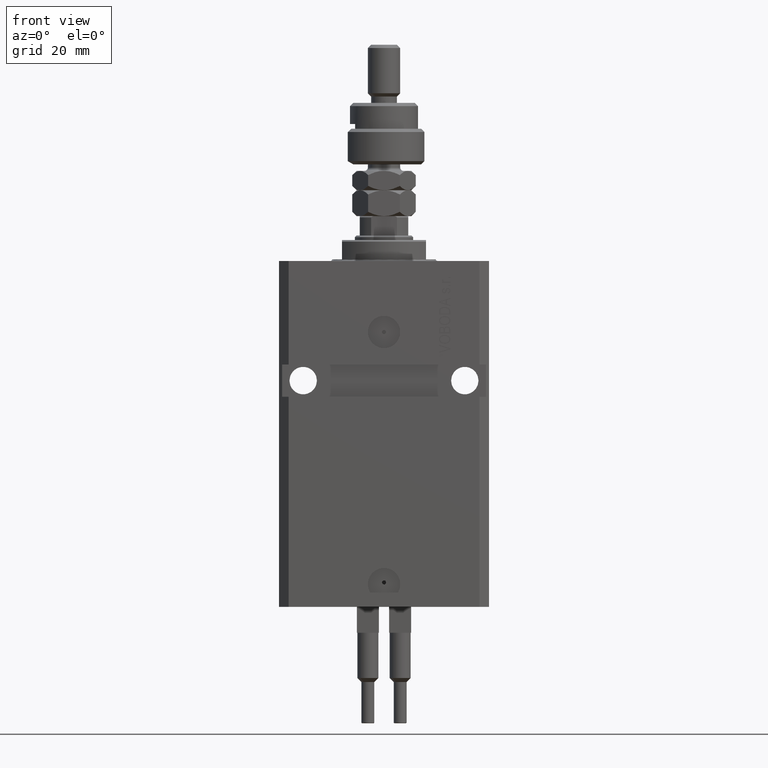
[diagram: clean part render]
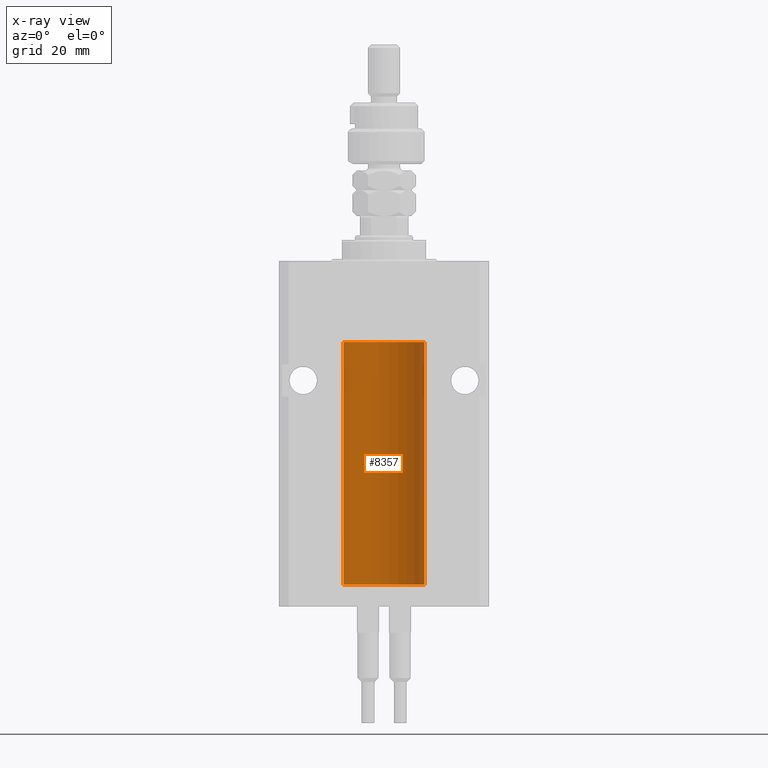
[diagram: x-ray — body ghosted, one internal face saturated and labeled with its STEP entity id]
A machine part, front view, then the same camera in x-ray: the body is ghosted and one INTERNAL B-rep face — a face not visible from any outside direction — is saturated and labeled: STEP entity #8357.
In plain terms, the highlighted cylindrical surface (partial cylindrical patch) has radius 12.5 mm, axis along (0, 0, 1).
Its self-contained STEP definition (entity closure, byte-faithful):
#1181 = VECTOR ( 'NONE', #40353, 1000.000000000000000 ) ;
#2567 = CYLINDRICAL_SURFACE ( 'NONE', #28645, 12.50000000000000000 ) ;
#2974 = VERTEX_POINT ( 'NONE', #32662 ) ;
#3790 = EDGE_CURVE ( 'NONE', #26517, #2974, #28296, .T. ) ;
#4530 = CARTESIAN_POINT ( 'NONE',  ( -12.50000000000017941, 3.883381774819353300E-13, -95.62500000000359535 ) ) ;
#5722 = CIRCLE ( 'NONE', #33615, 12.50000000000000000 ) ;
#6155 = CARTESIAN_POINT ( 'NONE',  ( 0.000000000000000000, 0.000000000000000000, -100.0999999999999943 ) ) ;
#6456 = EDGE_CURVE ( 'NONE', #2974, #27777, #24468, .T. ) ;
#7225 = DIRECTION ( 'NONE',  ( 0.000000000000000000, 0.000000000000000000, 1.000000000000000000 ) ) ;
#7313 = CARTESIAN_POINT ( 'NONE',  ( -12.50000000000000000, 1.530808498934191521E-15, -100.0999999999999943 ) ) ;
#8165 = DIRECTION ( 'NONE',  ( 1.000000000000000000, 0.000000000000000000, 0.000000000000000000 ) ) ;
#8357 = ADVANCED_FACE ( 'NONE', ( #41365 ), #2567, .F. ) ;
#9695 = DIRECTION ( 'NONE',  ( 1.000000000000000000, 0.000000000000000000, 0.000000000000000000 ) ) ;
#9883 = EDGE_CURVE ( 'NONE', #49556, #37697, #35289, .T. ) ;
#11081 = CARTESIAN_POINT ( 'NONE',  ( 0.000000000000000000, 0.000000000000000000, -25.10000000000000142 ) ) ;
#11753 = CARTESIAN_POINT ( 'NONE',  ( -12.48436376893640620, 0.6250290278979871994, -95.08132082824478459 ) ) ;
#12008 = CARTESIAN_POINT ( 'NONE',  ( -12.49999999999999112, 0.1631761135151224562, -95.62499999999980105 ) ) ;
#12105 = LINE ( 'NONE', #28261, #1181 ) ;
#15076 = CARTESIAN_POINT ( 'NONE',  ( -12.50000000000000000, -1.522152011595579853E-14, -94.37500000000000000 ) ) ;
#15420 = AXIS2_PLACEMENT_3D ( 'NONE', #11081, #7225, #8165 ) ;
#15580 = CARTESIAN_POINT ( 'NONE',  ( -12.49422197749723829, 0.3843754434364257122, -94.50047099568094211 ) ) ;
#15837 = CARTESIAN_POINT ( 'NONE',  ( -12.49631005746706514, 0.3253680783018457756, -95.55856740465388555 ) ) ;
#16092 = CARTESIAN_POINT ( 'NONE',  ( -12.50000000000017941, 3.883381774819353300E-13, -95.62500000000359535 ) ) ;
#17181 = VECTOR ( 'NONE', #23222, 1000.000000000000000 ) ;
#20022 = ORIENTED_EDGE ( 'NONE', *, *, #46411, .T. ) ;
#20585 = CARTESIAN_POINT ( 'NONE',  ( -12.50000000000000000, 1.530808498934191521E-15, -100.0999999999999943 ) ) ;
#21821 = DIRECTION ( 'NONE',  ( -0.000000000000000000, -0.000000000000000000, 1.000000000000000000 ) ) ;
#23070 = CARTESIAN_POINT ( 'NONE',  ( 12.50000000000000000, 0.000000000000000000, -100.0999999999999943 ) ) ;
#23222 = DIRECTION ( 'NONE',  ( -0.000000000000000000, -0.000000000000000000, 1.000000000000000000 ) ) ;
#24468 = CIRCLE ( 'NONE', #15420, 12.50000000000000000 ) ;
#25113 = CARTESIAN_POINT ( 'NONE',  ( -12.50000000000000000, -1.522152011595579853E-14, -94.37500000000000000 ) ) ;
#26517 = VERTEX_POINT ( 'NONE', #23070 ) ;
#27412 = CARTESIAN_POINT ( 'NONE',  ( -12.48520330846397997, 0.6088355886774070580, -95.16325431852561678 ) ) ;
#27569 = EDGE_CURVE ( 'NONE', #26517, #49556, #5722, .T. ) ;
#27777 = VERTEX_POINT ( 'NONE', #48094 ) ;
#28261 = CARTESIAN_POINT ( 'NONE',  ( -12.50000000000000000, 1.530808498934191521E-15, -100.0999999999999943 ) ) ;
#28296 = LINE ( 'NONE', #36521, #47372 ) ;
#28645 = AXIS2_PLACEMENT_3D ( 'NONE', #6155, #21821, #37492 ) ;
#29049 = ORIENTED_EDGE ( 'NONE', *, *, #40266, .F. ) ;
#31252 = CARTESIAN_POINT ( 'NONE',  ( -12.48810268015257741, 0.5573155909661239304, -94.67347410093871929 ) ) ;
#32662 = CARTESIAN_POINT ( 'NONE',  ( 12.50000000000000000, 0.000000000000000000, -25.10000000000000142 ) ) ;
#33615 = AXIS2_PLACEMENT_3D ( 'NONE', #44396, #49008, #9695 ) ;
#34337 = ORIENTED_EDGE ( 'NONE', *, *, #9883, .F. ) ;
#35120 = CARTESIAN_POINT ( 'NONE',  ( -12.49915784441387068, 0.1636601911727894876, -94.39126818989429069 ) ) ;
#35289 = LINE ( 'NONE', #7313, #17181 ) ;
#35369 = CARTESIAN_POINT ( 'NONE',  ( -12.49011732893843529, 0.5003763274120199833, -95.38348111289285214 ) ) ;
#36256 = VERTEX_POINT ( 'NONE', #25113 ) ;
#36521 = CARTESIAN_POINT ( 'NONE',  ( 12.50000000000000000, 0.000000000000000000, -100.0999999999999943 ) ) ;
#37492 = DIRECTION ( 'NONE',  ( 1.000000000000000000, 0.000000000000000000, 0.000000000000000000 ) ) ;
#37697 = VERTEX_POINT ( 'NONE', #4530 ) ;
#38157 = EDGE_LOOP ( 'NONE', ( #34337, #40043, #43834, #46457, #29049, #20022 ) ) ;
#40043 = ORIENTED_EDGE ( 'NONE', *, *, #27569, .F. ) ;
#40138 = DIRECTION ( 'NONE',  ( -0.000000000000000000, -0.000000000000000000, 1.000000000000000000 ) ) ;
#40266 = EDGE_CURVE ( 'NONE', #36256, #27777, #12105, .T. ) ;
#40353 = DIRECTION ( 'NONE',  ( -0.000000000000000000, -0.000000000000000000, 1.000000000000000000 ) ) ;
#41365 = FACE_OUTER_BOUND ( 'NONE', #38157, .T. ) ;
#43103 = CARTESIAN_POINT ( 'NONE',  ( -12.48809959379011403, 0.5462151254764922026, -95.31461370481613926 ) ) ;
#43834 = ORIENTED_EDGE ( 'NONE', *, *, #3790, .T. ) ;
#44396 = CARTESIAN_POINT ( 'NONE',  ( 0.000000000000000000, 0.000000000000000000, -100.0999999999999943 ) ) ;
#46411 = EDGE_CURVE ( 'NONE', #36256, #37697, #50811, .T. ) ;
#46454 = CARTESIAN_POINT ( 'NONE',  ( -12.50000000000000000, 0.08260426088727994276, -94.37499999999998579 ) ) ;
#46457 = ORIENTED_EDGE ( 'NONE', *, *, #6456, .T. ) ;
#46957 = CARTESIAN_POINT ( 'NONE',  ( -12.48436813453758631, 0.6249418250771134886, -94.83668996798924411 ) ) ;
#47372 = VECTOR ( 'NONE', #40138, 1000.000000000000000 ) ;
#48094 = CARTESIAN_POINT ( 'NONE',  ( -12.50000000000000000, 1.530808498934191521E-15, -25.10000000000000142 ) ) ;
#49008 = DIRECTION ( 'NONE',  ( 0.000000000000000000, 0.000000000000000000, 1.000000000000000000 ) ) ;
#49556 = VERTEX_POINT ( 'NONE', #20585 ) ;
#50809 = CARTESIAN_POINT ( 'NONE',  ( -12.49625855304194033, 0.3150454781037993479, -94.45402800297488000 ) ) ;
#50811 = B_SPLINE_CURVE_WITH_KNOTS ( 'NONE', 3,
 ( #15076, #46454, #35120, #50809, #15580, #31252, #46957, #11753, #27412, #43103, #35369, #15837, #12008, #16092 ),
 .UNSPECIFIED., .F., .F.,
 ( 4, 2, 2, 2, 2, 2, 4 ),
 ( 3.486178718436696769E-18, 0.0002442924852390829216, 0.0004885849704781623738, 0.0009771699409563507684, 0.001221462426195465403, 0.001465754911434580254, 0.001954339881912780900 ),
 .UNSPECIFIED. ) ;